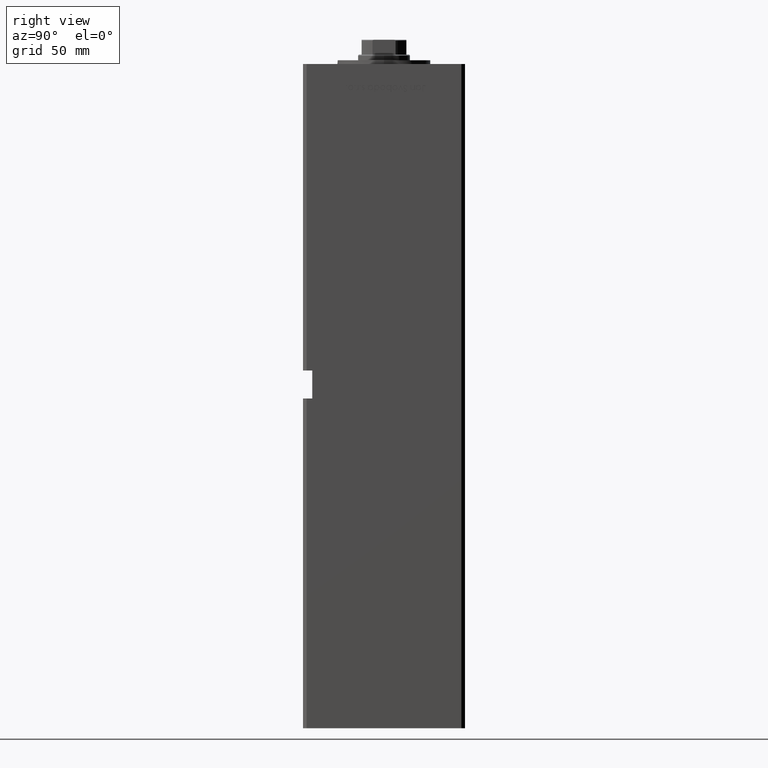
[diagram: clean part render]
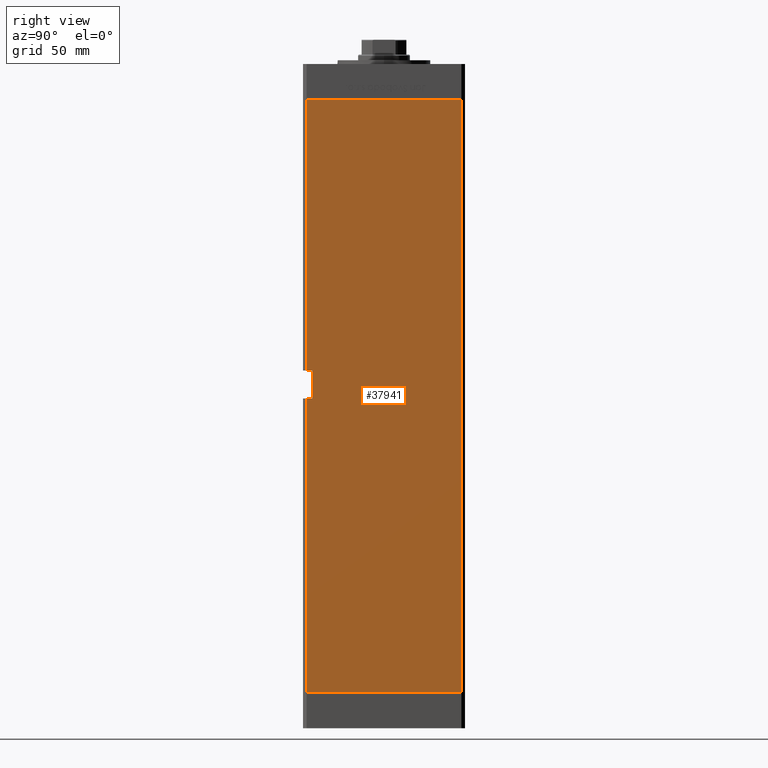
[diagram: same view with one face highlighted and labeled with its STEP entity id]
A machine part, right view. The second image highlights one B-rep face of the part: STEP entity #37941.
In plain terms, the highlighted planar face has unit normal (1, -0, 0).
Its self-contained STEP definition (entity closure, byte-faithful):
#305 = VERTEX_POINT ( 'NONE', #3690 ) ;
#744 = LINE ( 'NONE', #20644, #43038 ) ;
#1742 = ORIENTED_EDGE ( 'NONE', *, *, #42025, .T. ) ;
#2280 = ORIENTED_EDGE ( 'NONE', *, *, #38745, .F. ) ;
#2477 = LINE ( 'NONE', #11578, #50313 ) ;
#3690 = CARTESIAN_POINT ( 'NONE',  ( 50.00000000000001421, 41.49999999999999289, 318.5000000000000000 ) ) ;
#3847 = LINE ( 'NONE', #7600, #34556 ) ;
#7546 = CARTESIAN_POINT ( 'NONE',  ( 50.00000000000000000, -38.50000000000000000, 173.0000000000000284 ) ) ;
#7600 = CARTESIAN_POINT ( 'NONE',  ( 50.00000000000000000, -38.50000000000000000, 173.0000000000000284 ) ) ;
#11425 = VERTEX_POINT ( 'NONE', #18690 ) ;
#11578 = CARTESIAN_POINT ( 'NONE',  ( 49.99999999999998579, -41.49999999999999289, 318.5000000000000000 ) ) ;
#13191 = ORIENTED_EDGE ( 'NONE', *, *, #45161, .F. ) ;
#14441 = VERTEX_POINT ( 'NONE', #40358 ) ;
#15054 = LINE ( 'NONE', #23387, #51626 ) ;
#15085 = DIRECTION ( 'NONE',  ( -0.000000000000000000, -0.000000000000000000, 1.000000000000000000 ) ) ;
#15150 = LINE ( 'NONE', #39600, #18461 ) ;
#16328 = DIRECTION ( 'NONE',  ( -0.000000000000000000, -0.000000000000000000, -1.000000000000000000 ) ) ;
#16777 = AXIS2_PLACEMENT_3D ( 'NONE', #49203, #37355, #36560 ) ;
#16811 = VECTOR ( 'NONE', #15085, 1000.000000000000000 ) ;
#18164 = VECTOR ( 'NONE', #36512, 1000.000000000000000 ) ;
#18309 = VERTEX_POINT ( 'NONE', #28913 ) ;
#18461 = VECTOR ( 'NONE', #43896, 1000.000000000000000 ) ;
#18690 = CARTESIAN_POINT ( 'NONE',  ( 50.00000000000000000, -38.50000000000000000, 173.0000000000000284 ) ) ;
#19588 = CARTESIAN_POINT ( 'NONE',  ( 50.00000000000001421, 41.49999999999999289, 0.000000000000000000 ) ) ;
#19660 = CARTESIAN_POINT ( 'NONE',  ( 50.00000000000000000, -41.49999999999999289, 158.0000000000000000 ) ) ;
#20644 = CARTESIAN_POINT ( 'NONE',  ( 50.00000000000001421, 41.49999999999999289, 318.5000000000000000 ) ) ;
#21908 = ORIENTED_EDGE ( 'NONE', *, *, #26676, .T. ) ;
#22776 = VERTEX_POINT ( 'NONE', #19660 ) ;
#23260 = CARTESIAN_POINT ( 'NONE',  ( 49.99999999999998579, -41.49999999999999289, 318.5000000000000000 ) ) ;
#23387 = CARTESIAN_POINT ( 'NONE',  ( 50.00000000000001421, 41.49999999999999289, 318.5000000000000000 ) ) ;
#23454 = VERTEX_POINT ( 'NONE', #48317 ) ;
#24207 = FACE_OUTER_BOUND ( 'NONE', #43906, .T. ) ;
#26676 = EDGE_CURVE ( 'NONE', #305, #29968, #15054, .T. ) ;
#26959 = ORIENTED_EDGE ( 'NONE', *, *, #43783, .F. ) ;
#27107 = CARTESIAN_POINT ( 'NONE',  ( 49.99999999999998579, -41.49999999999999289, 318.5000000000000000 ) ) ;
#28056 = ORIENTED_EDGE ( 'NONE', *, *, #48123, .F. ) ;
#28186 = LINE ( 'NONE', #19588, #18164 ) ;
#28913 = CARTESIAN_POINT ( 'NONE',  ( 50.00000000000000000, -41.49999999999999289, 173.0000000000000284 ) ) ;
#29968 = VERTEX_POINT ( 'NONE', #23260 ) ;
#30201 = CARTESIAN_POINT ( 'NONE',  ( 49.99999999999998579, -41.49999999999999289, 0.000000000000000000 ) ) ;
#34556 = VECTOR ( 'NONE', #48459, 1000.000000000000000 ) ;
#35155 = LINE ( 'NONE', #27107, #42097 ) ;
#35987 = DIRECTION ( 'NONE',  ( -3.344045254895050973E-16, -1.000000000000000000, 0.000000000000000000 ) ) ;
#36043 = EDGE_CURVE ( 'NONE', #14441, #22776, #15150, .T. ) ;
#36512 = DIRECTION ( 'NONE',  ( -3.344045254895050973E-16, -1.000000000000000000, 0.000000000000000000 ) ) ;
#36560 = DIRECTION ( 'NONE',  ( 3.344045254895050480E-16, 1.000000000000000000, 0.000000000000000000 ) ) ;
#36942 = ORIENTED_EDGE ( 'NONE', *, *, #38674, .T. ) ;
#37355 = DIRECTION ( 'NONE',  ( 1.000000000000000000, -3.344045254895050480E-16, 0.000000000000000000 ) ) ;
#37941 = ADVANCED_FACE ( 'NONE', ( #24207 ), #40587, .T. ) ;
#38085 = ORIENTED_EDGE ( 'NONE', *, *, #36043, .T. ) ;
#38674 = EDGE_CURVE ( 'NONE', #22776, #41656, #2477, .T. ) ;
#38745 = EDGE_CURVE ( 'NONE', #14441, #11425, #44623, .T. ) ;
#39600 = CARTESIAN_POINT ( 'NONE',  ( 50.00000000000000000, -38.50000000000000000, 158.0000000000000000 ) ) ;
#40358 = CARTESIAN_POINT ( 'NONE',  ( 49.99999999999998579, -38.49999999999999289, 158.0000000000000000 ) ) ;
#40587 = PLANE ( 'NONE',  #16777 ) ;
#41656 = VERTEX_POINT ( 'NONE', #30201 ) ;
#42025 = EDGE_CURVE ( 'NONE', #29968, #18309, #35155, .T. ) ;
#42097 = VECTOR ( 'NONE', #51553, 1000.000000000000000 ) ;
#43038 = VECTOR ( 'NONE', #16328, 1000.000000000000000 ) ;
#43783 = EDGE_CURVE ( 'NONE', #305, #23454, #744, .T. ) ;
#43896 = DIRECTION ( 'NONE',  ( -0.000000000000000000, -1.000000000000000000, -0.000000000000000000 ) ) ;
#43906 = EDGE_LOOP ( 'NONE', ( #38085, #36942, #13191, #26959, #21908, #1742, #28056, #2280 ) ) ;
#44623 = LINE ( 'NONE', #7546, #16811 ) ;
#45161 = EDGE_CURVE ( 'NONE', #23454, #41656, #28186, .T. ) ;
#48123 = EDGE_CURVE ( 'NONE', #11425, #18309, #3847, .T. ) ;
#48317 = CARTESIAN_POINT ( 'NONE',  ( 50.00000000000001421, 41.49999999999999289, 0.000000000000000000 ) ) ;
#48459 = DIRECTION ( 'NONE',  ( -0.000000000000000000, -1.000000000000000000, -0.000000000000000000 ) ) ;
#49203 = CARTESIAN_POINT ( 'NONE',  ( 50.00000000000001421, 41.49999999999999289, 318.5000000000000000 ) ) ;
#50313 = VECTOR ( 'NONE', #51911, 1000.000000000000000 ) ;
#51553 = DIRECTION ( 'NONE',  ( -0.000000000000000000, -0.000000000000000000, -1.000000000000000000 ) ) ;
#51626 = VECTOR ( 'NONE', #35987, 1000.000000000000000 ) ;
#51911 = DIRECTION ( 'NONE',  ( -0.000000000000000000, -0.000000000000000000, -1.000000000000000000 ) ) ;